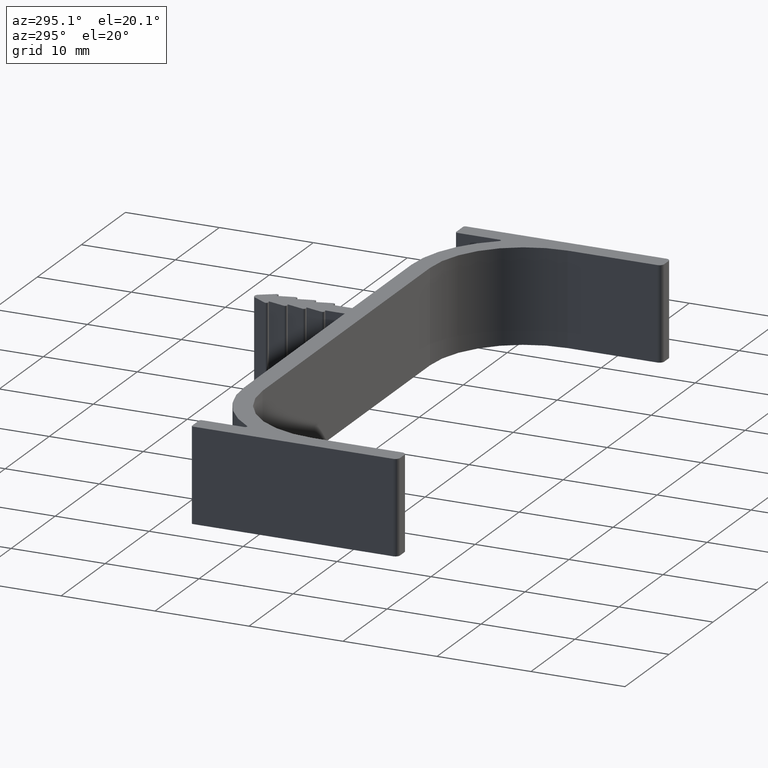
[diagram: clean part render]
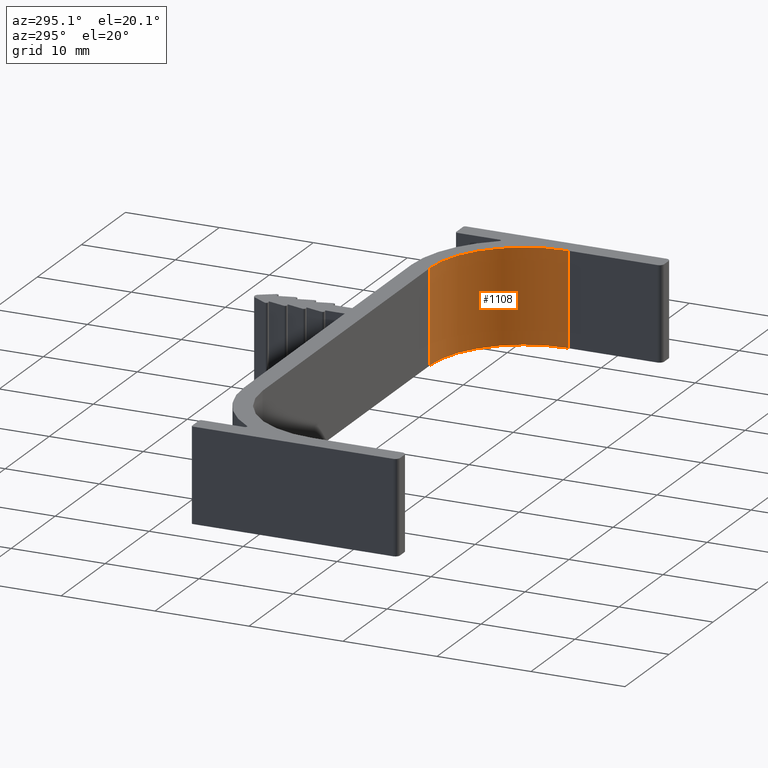
[diagram: same view with one face highlighted and labeled with its STEP entity id]
A machine part, auxiliary view. The second image highlights one B-rep face of the part: STEP entity #1108.
In plain terms, the highlighted cylindrical surface (partial cylindrical patch) has radius 10 mm, axis along (0, 0, 1).
Its self-contained STEP definition (entity closure, byte-faithful):
#101=FACE_OUTER_BOUND('',#157,.T.);
#157=EDGE_LOOP('',(#1020,#1021,#1022,#1023));
#235=LINE('',#1782,#351);
#275=LINE('',#1861,#391);
#351=VECTOR('',#1414,10.);
#391=VECTOR('',#1532,10.);
#409=CIRCLE('',#1132,10.);
#422=CIRCLE('',#1157,10.);
#482=VERTEX_POINT('',#1627);
#483=VERTEX_POINT('',#1629);
#506=VERTEX_POINT('',#1700);
#507=VERTEX_POINT('',#1702);
#590=EDGE_CURVE('',#483,#482,#409,.T.);
#627=EDGE_CURVE('',#507,#506,#422,.T.);
#667=EDGE_CURVE('',#506,#483,#235,.T.);
#707=EDGE_CURVE('',#482,#507,#275,.T.);
#1020=ORIENTED_EDGE('',*,*,#590,.T.);
#1021=ORIENTED_EDGE('',*,*,#707,.T.);
#1022=ORIENTED_EDGE('',*,*,#627,.T.);
#1023=ORIENTED_EDGE('',*,*,#667,.T.);
#1054=CYLINDRICAL_SURFACE('',#1212,10.);
#1108=ADVANCED_FACE('',(#101),#1054,.F.);
#1132=AXIS2_PLACEMENT_3D('',#1630,#1282,#1283);
#1157=AXIS2_PLACEMENT_3D('',#1703,#1356,#1357);
#1212=AXIS2_PLACEMENT_3D('',#1860,#1530,#1531);
#1282=DIRECTION('center_axis',(0.,0.,-1.));
#1283=DIRECTION('ref_axis',(0.707106781186547,0.707106781186547,0.));
#1356=DIRECTION('center_axis',(0.,0.,1.));
#1357=DIRECTION('ref_axis',(0.707106781186547,0.707106781186547,0.));
#1414=DIRECTION('',(0.,0.,-1.));
#1530=DIRECTION('center_axis',(0.,0.,1.));
#1531=DIRECTION('ref_axis',(0.707106781186547,0.707106781186547,0.));
#1532=DIRECTION('',(0.,0.,1.));
#1627=CARTESIAN_POINT('',(21.,-6.00000000000001,-5.));
#1629=CARTESIAN_POINT('',(11.,3.99999999999999,-5.));
#1630=CARTESIAN_POINT('Origin',(11.,-6.00000000000001,-5.));
#1700=CARTESIAN_POINT('',(11.,3.99999999999999,5.));
#1702=CARTESIAN_POINT('',(21.,-6.00000000000001,5.));
#1703=CARTESIAN_POINT('Origin',(11.,-6.00000000000001,5.));
#1782=CARTESIAN_POINT('',(11.,3.99999999999999,0.));
#1860=CARTESIAN_POINT('Origin',(11.,-6.00000000000001,0.));
#1861=CARTESIAN_POINT('',(21.,-6.00000000000001,0.));